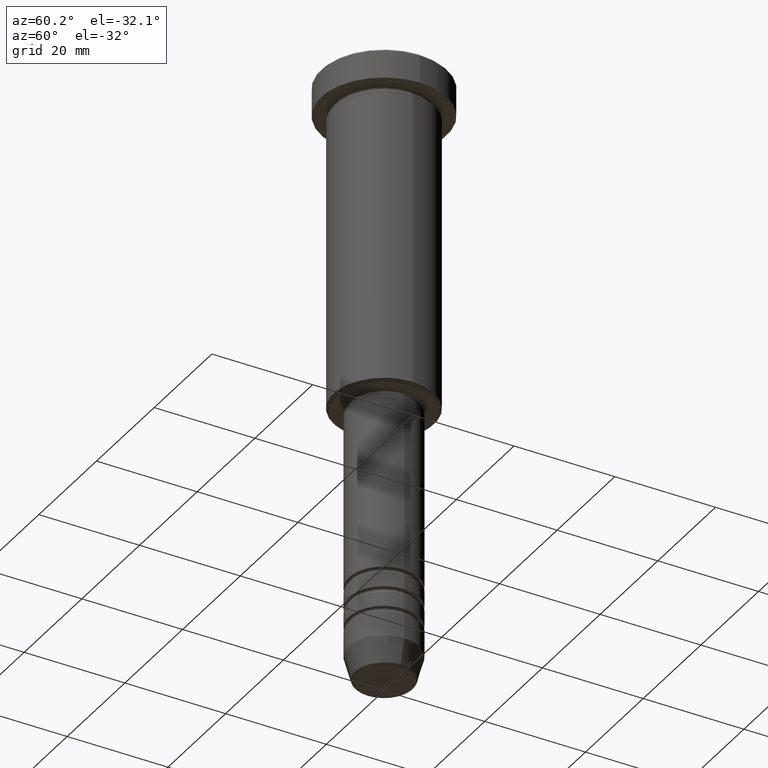
[diagram: clean part render]
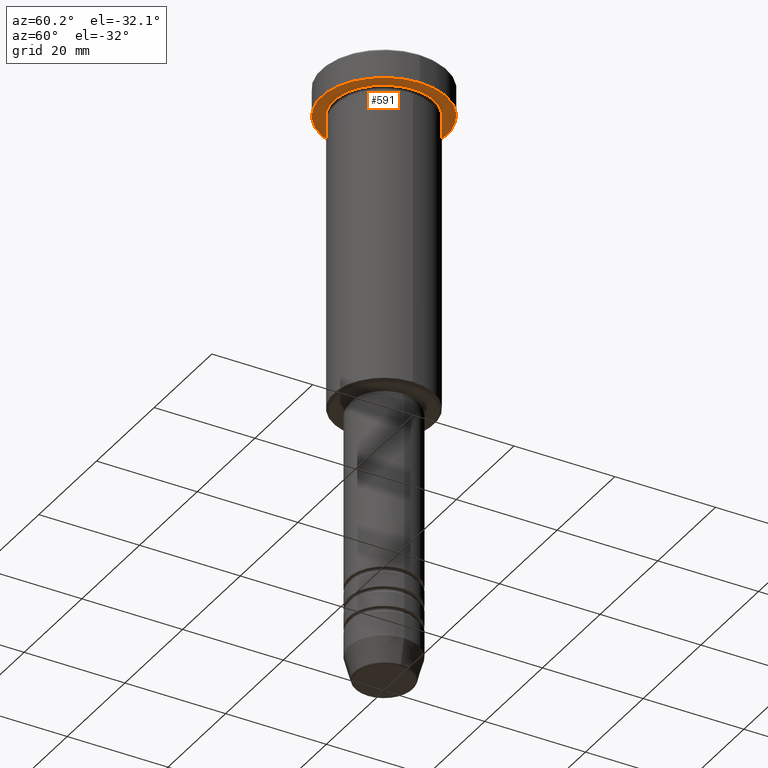
[diagram: same view with one face highlighted and labeled with its STEP entity id]
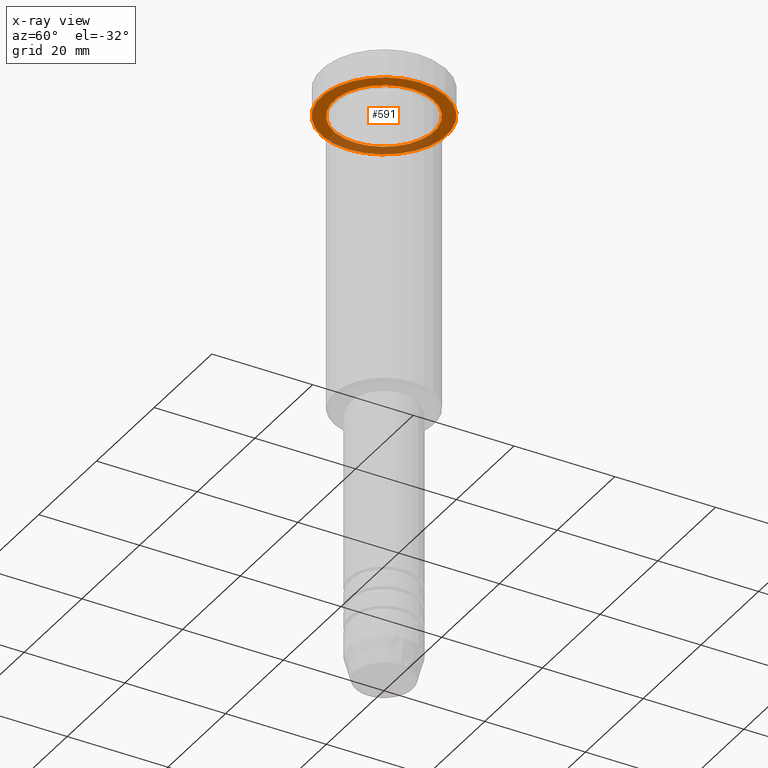
[diagram: x-ray of the same camera — body ghosted, the highlighted face saturated]
A machine part, auxiliary view. The second image highlights one B-rep face of the part: STEP entity #591.
The next image is the same camera in x-ray: the body ghosted, the highlighted face saturated — about 30% of this face is hidden behind the body in this view.
In plain terms, the highlighted planar face has unit normal (0, 0, -1).
Its self-contained STEP definition (entity closure, byte-faithful):
#7 = CARTESIAN_POINT ( 'NONE',  ( -12.50000000000000000, 1.530808498934191521E-15, -5.999999999999996447 ) ) ;
#8 = CARTESIAN_POINT ( 'NONE',  ( 0.000000000000000000, 0.000000000000000000, -5.999999999999996447 ) ) ;
#30 = DIRECTION ( 'NONE',  ( -0.000000000000000000, -0.000000000000000000, 1.000000000000000000 ) ) ;
#53 = AXIS2_PLACEMENT_3D ( 'NONE', #8, #30, #1025 ) ;
#65 = CARTESIAN_POINT ( 'NONE',  ( 0.000000000000000000, 0.000000000000000000, -5.999999999999996447 ) ) ;
#96 = DIRECTION ( 'NONE',  ( -0.000000000000000000, -0.000000000000000000, 1.000000000000000000 ) ) ;
#117 = CARTESIAN_POINT ( 'NONE',  ( 0.000000000000000000, 12.50000000000000000, -5.999999999999996447 ) ) ;
#119 = CARTESIAN_POINT ( 'NONE',  ( 10.00000000000000000, 1.224646799147353256E-15, -5.999999999999996447 ) ) ;
#151 = VERTEX_POINT ( 'NONE', #836 ) ;
#159 = DIRECTION ( 'NONE',  ( -0.000000000000000000, -0.000000000000000000, 1.000000000000000000 ) ) ;
#183 = CARTESIAN_POINT ( 'NONE',  ( 0.000000000000000000, 0.000000000000000000, -5.999999999999996447 ) ) ;
#199 = ORIENTED_EDGE ( 'NONE', *, *, #646, .T. ) ;
#205 = PLANE ( 'NONE',  #464 ) ;
#268 = CARTESIAN_POINT ( 'NONE',  ( 12.50000000000000000, 0.000000000000000000, -5.999999999999996447 ) ) ;
#269 = VERTEX_POINT ( 'NONE', #119 ) ;
#319 = VERTEX_POINT ( 'NONE', #7 ) ;
#413 = ORIENTED_EDGE ( 'NONE', *, *, #717, .F. ) ;
#420 = EDGE_LOOP ( 'NONE', ( #199, #1152 ) ) ;
#447 = CIRCLE ( 'NONE', #53, 12.50000000000000000 ) ;
#453 = DIRECTION ( 'NONE',  ( 1.000000000000000000, 0.000000000000000000, 0.000000000000000000 ) ) ;
#464 = AXIS2_PLACEMENT_3D ( 'NONE', #117, #752, #665 ) ;
#466 = AXIS2_PLACEMENT_3D ( 'NONE', #1165, #159, #1069 ) ;
#591 = ADVANCED_FACE ( 'NONE', ( #658, #1028 ), #205, .T. ) ;
#611 = DIRECTION ( 'NONE',  ( -1.000000000000000000, 0.000000000000000000, 0.000000000000000000 ) ) ;
#624 = CIRCLE ( 'NONE', #1143, 10.00000000000000000 ) ;
#646 = EDGE_CURVE ( 'NONE', #151, #269, #624, .T. ) ;
#658 = FACE_BOUND ( 'NONE', #420, .T. ) ;
#665 = DIRECTION ( 'NONE',  ( -1.000000000000000000, 0.000000000000000000, -0.000000000000000000 ) ) ;
#702 = VERTEX_POINT ( 'NONE', #268 ) ;
#717 = EDGE_CURVE ( 'NONE', #319, #702, #447, .T. ) ;
#727 = ORIENTED_EDGE ( 'NONE', *, *, #1062, .F. ) ;
#752 = DIRECTION ( 'NONE',  ( 0.000000000000000000, 0.000000000000000000, -1.000000000000000000 ) ) ;
#769 = AXIS2_PLACEMENT_3D ( 'NONE', #183, #96, #453 ) ;
#836 = CARTESIAN_POINT ( 'NONE',  ( -10.00000000000000000, 0.000000000000000000, -5.999999999999996447 ) ) ;
#930 = EDGE_LOOP ( 'NONE', ( #727, #413 ) ) ;
#1008 = EDGE_CURVE ( 'NONE', #269, #151, #1107, .T. ) ;
#1025 = DIRECTION ( 'NONE',  ( 1.000000000000000000, 0.000000000000000000, 0.000000000000000000 ) ) ;
#1028 = FACE_OUTER_BOUND ( 'NONE', #930, .T. ) ;
#1062 = EDGE_CURVE ( 'NONE', #702, #319, #1144, .T. ) ;
#1069 = DIRECTION ( 'NONE',  ( -1.000000000000000000, 0.000000000000000000, 0.000000000000000000 ) ) ;
#1071 = DIRECTION ( 'NONE',  ( -0.000000000000000000, -0.000000000000000000, 1.000000000000000000 ) ) ;
#1107 = CIRCLE ( 'NONE', #466, 10.00000000000000000 ) ;
#1143 = AXIS2_PLACEMENT_3D ( 'NONE', #65, #1071, #611 ) ;
#1144 = CIRCLE ( 'NONE', #769, 12.50000000000000000 ) ;
#1152 = ORIENTED_EDGE ( 'NONE', *, *, #1008, .T. ) ;
#1165 = CARTESIAN_POINT ( 'NONE',  ( 0.000000000000000000, 0.000000000000000000, -5.999999999999996447 ) ) ;